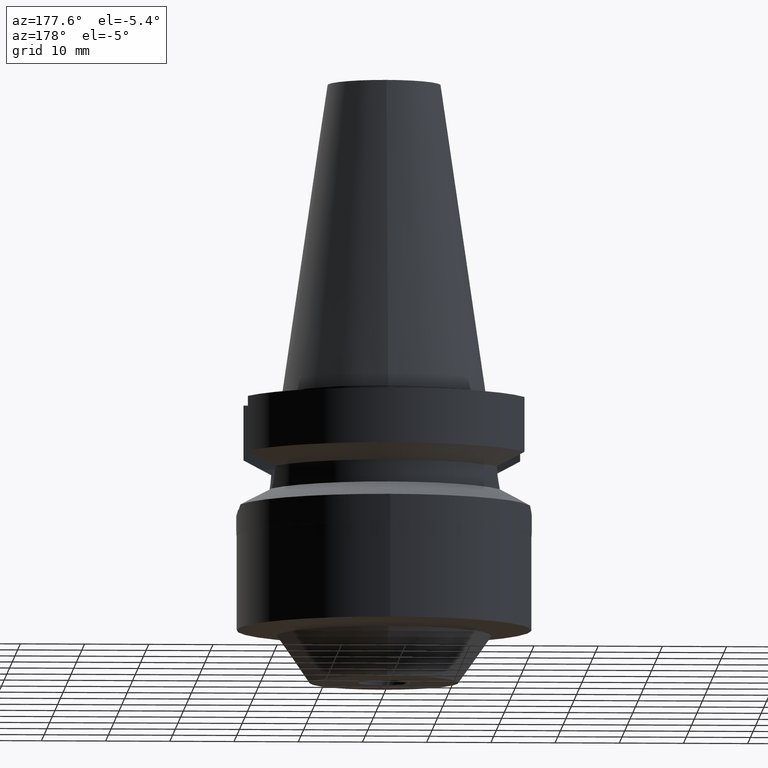
[diagram: clean part render]
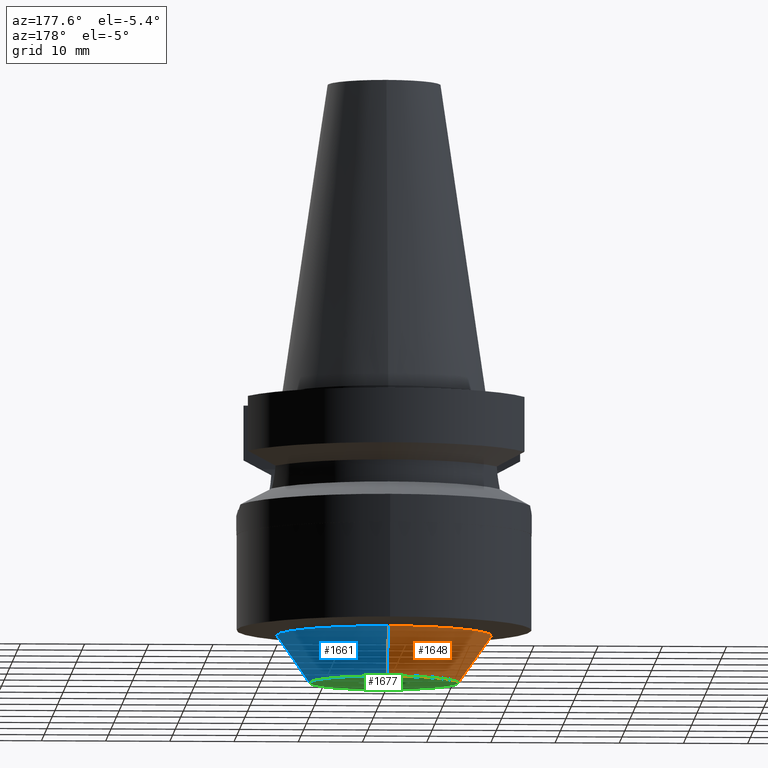
[diagram: same view with three faces highlighted in distinct colors, each labeled with its STEP entity id]
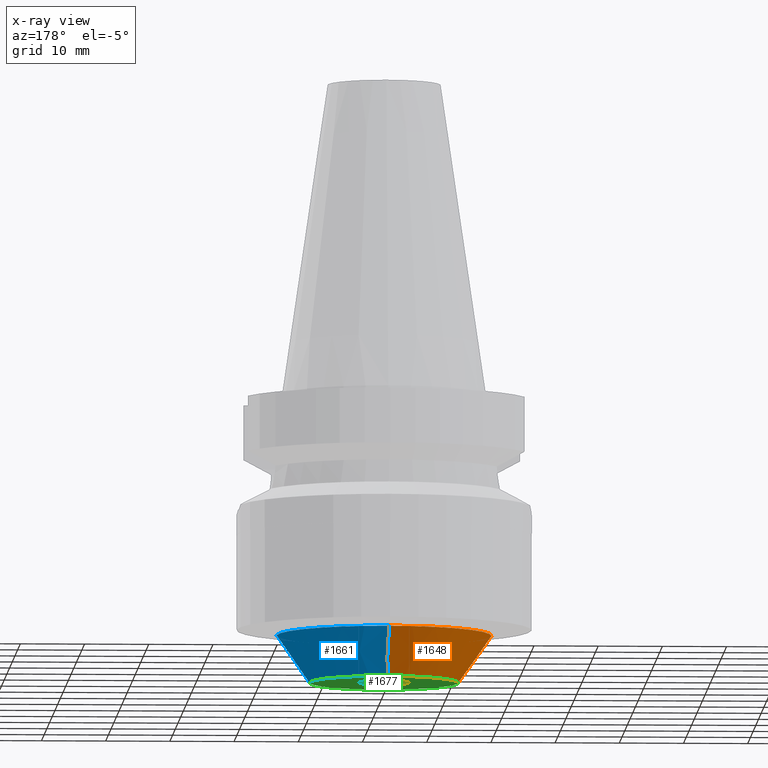
[diagram: x-ray of the same camera — body ghosted, the three highlighted faces saturated]
A machine part, auxiliary view with three faces highlighted in distinct colors.
The next image is the same camera in x-ray (body ghosted, the three faces saturated) — at least one of them is partly hidden behind the body in this view.
Their STEP definitions:

[orange] entity #1648 — the highlighted conical surface has half-angle 34.944 deg.
#695=CARTESIAN_POINT('',(0.E0,0.E0,-3.766545330248E1));
#696=DIRECTION('',(0.E0,0.E0,-1.E0));
#697=DIRECTION('',(0.E0,-1.E0,0.E0));
#698=AXIS2_PLACEMENT_3D('',#695,#696,#697);
#703=DIRECTION('',(0.E0,5.727755361017E-1,-8.197122575901E-1));
#704=VECTOR('',#703,8.947708942509E0);
#705=CARTESIAN_POINT('',(0.E0,-1.6721E1,-3.766545330248E1));
#706=LINE('',#705,#704);
#710=DIRECTION('',(0.E0,-5.727755361017E-1,-8.197122575901E-1));
#711=VECTOR('',#710,8.947708942509E0);
#712=CARTESIAN_POINT('',(0.E0,1.6721E1,-3.766545330248E1));
#713=LINE('',#712,#711);
#733=CARTESIAN_POINT('',(0.E0,0.E0,-4.5E1));
#734=DIRECTION('',(0.E0,0.E0,1.E0));
#735=DIRECTION('',(0.E0,1.E0,0.E0));
#736=AXIS2_PLACEMENT_3D('',#733,#734,#735);
#1053=CARTESIAN_POINT('',(0.E0,-1.159597121358E1,-4.5E1));
#1054=CARTESIAN_POINT('',(0.E0,1.159597121358E1,-4.5E1));
#1055=VERTEX_POINT('',#1053);
#1056=VERTEX_POINT('',#1054);
#1057=CARTESIAN_POINT('',(0.E0,1.6721E1,-3.766545330248E1));
#1058=VERTEX_POINT('',#1057);
#1059=CARTESIAN_POINT('',(0.E0,-1.6721E1,-3.766545330248E1));
#1060=VERTEX_POINT('',#1059);
#1634=CARTESIAN_POINT('',(0.E0,0.E0,-4.133272665124E1));
#1635=DIRECTION('',(0.E0,0.E0,1.E0));
#1636=DIRECTION('',(0.E0,1.E0,0.E0));
#1637=AXIS2_PLACEMENT_3D('',#1634,#1635,#1636);
#1638=CONICAL_SURFACE('',#1637,1.415848560679E1,3.4944E1);
#1640=ORIENTED_EDGE('',*,*,#1639,.F.);
#1641=ORIENTED_EDGE('',*,*,#1629,.F.);
#1643=ORIENTED_EDGE('',*,*,#1642,.T.);
#1645=ORIENTED_EDGE('',*,*,#1644,.F.);
#1646=EDGE_LOOP('',(#1640,#1641,#1643,#1645));
#1647=FACE_OUTER_BOUND('',#1646,.F.);
#699=CIRCLE('',#698,1.6721E1);
#737=CIRCLE('',#736,1.159597121358E1);
#1629=EDGE_CURVE('',#1060,#1058,#699,.T.);
#1639=EDGE_CURVE('',#1058,#1056,#713,.T.);
#1642=EDGE_CURVE('',#1060,#1055,#706,.T.);
#1644=EDGE_CURVE('',#1056,#1055,#737,.T.);
#1648=ADVANCED_FACE('',(#1647),#1638,.T.);

[blue] entity #1661 — the highlighted conical surface has half-angle 34.944 deg.
#703=DIRECTION('',(0.E0,5.727755361017E-1,-8.197122575901E-1));
#704=VECTOR('',#703,8.947708942509E0);
#705=CARTESIAN_POINT('',(0.E0,-1.6721E1,-3.766545330248E1));
#706=LINE('',#705,#704);
#710=DIRECTION('',(0.E0,-5.727755361017E-1,-8.197122575901E-1));
#711=VECTOR('',#710,8.947708942509E0);
#712=CARTESIAN_POINT('',(0.E0,1.6721E1,-3.766545330248E1));
#713=LINE('',#712,#711);
#717=CARTESIAN_POINT('',(0.E0,0.E0,-3.766545330248E1));
#718=DIRECTION('',(0.E0,0.E0,1.E0));
#719=DIRECTION('',(0.E0,-1.E0,0.E0));
#720=AXIS2_PLACEMENT_3D('',#717,#718,#719);
#725=CARTESIAN_POINT('',(0.E0,0.E0,-4.5E1));
#726=DIRECTION('',(0.E0,0.E0,1.E0));
#727=DIRECTION('',(0.E0,-1.E0,0.E0));
#728=AXIS2_PLACEMENT_3D('',#725,#726,#727);
#1053=CARTESIAN_POINT('',(0.E0,-1.159597121358E1,-4.5E1));
#1054=CARTESIAN_POINT('',(0.E0,1.159597121358E1,-4.5E1));
#1055=VERTEX_POINT('',#1053);
#1056=VERTEX_POINT('',#1054);
#1057=CARTESIAN_POINT('',(0.E0,1.6721E1,-3.766545330248E1));
#1058=VERTEX_POINT('',#1057);
#1059=CARTESIAN_POINT('',(0.E0,-1.6721E1,-3.766545330248E1));
#1060=VERTEX_POINT('',#1059);
#1649=CARTESIAN_POINT('',(0.E0,0.E0,-4.133272665124E1));
#1650=DIRECTION('',(0.E0,0.E0,1.E0));
#1651=DIRECTION('',(0.E0,1.E0,0.E0));
#1652=AXIS2_PLACEMENT_3D('',#1649,#1650,#1651);
#1653=CONICAL_SURFACE('',#1652,1.415848560679E1,3.4944E1);
#1654=ORIENTED_EDGE('',*,*,#1639,.T.);
#1656=ORIENTED_EDGE('',*,*,#1655,.F.);
#1657=ORIENTED_EDGE('',*,*,#1642,.F.);
#1658=ORIENTED_EDGE('',*,*,#1613,.T.);
#1659=EDGE_LOOP('',(#1654,#1656,#1657,#1658));
#1660=FACE_OUTER_BOUND('',#1659,.F.);
#721=CIRCLE('',#720,1.6721E1);
#729=CIRCLE('',#728,1.159597121358E1);
#1613=EDGE_CURVE('',#1060,#1058,#721,.T.);
#1639=EDGE_CURVE('',#1058,#1056,#713,.T.);
#1642=EDGE_CURVE('',#1060,#1055,#706,.T.);
#1655=EDGE_CURVE('',#1055,#1056,#729,.T.);
#1661=ADVANCED_FACE('',(#1660),#1653,.T.);

[green] entity #1677 — the highlighted planar face has unit normal (0, 0, -1).
#725=CARTESIAN_POINT('',(0.E0,0.E0,-4.5E1));
#726=DIRECTION('',(0.E0,0.E0,1.E0));
#727=DIRECTION('',(0.E0,-1.E0,0.E0));
#728=AXIS2_PLACEMENT_3D('',#725,#726,#727);
#733=CARTESIAN_POINT('',(0.E0,0.E0,-4.5E1));
#734=DIRECTION('',(0.E0,0.E0,1.E0));
#735=DIRECTION('',(0.E0,1.E0,0.E0));
#736=AXIS2_PLACEMENT_3D('',#733,#734,#735);
#741=CARTESIAN_POINT('',(0.E0,1.874566855455E-14,-4.5E1));
#742=DIRECTION('',(0.E0,0.E0,-1.E0));
#743=DIRECTION('',(0.E0,-1.E0,0.E0));
#744=AXIS2_PLACEMENT_3D('',#741,#742,#743);
#749=CARTESIAN_POINT('',(0.E0,1.874566855455E-14,-4.5E1));
#750=DIRECTION('',(0.E0,0.E0,-1.E0));
#751=DIRECTION('',(0.E0,1.E0,0.E0));
#752=AXIS2_PLACEMENT_3D('',#749,#750,#751);
#1049=CARTESIAN_POINT('',(0.E0,4.E0,-4.5E1));
#1050=VERTEX_POINT('',#1049);
#1051=CARTESIAN_POINT('',(0.E0,-4.E0,-4.5E1));
#1052=VERTEX_POINT('',#1051);
#1053=CARTESIAN_POINT('',(0.E0,-1.159597121358E1,-4.5E1));
#1054=CARTESIAN_POINT('',(0.E0,1.159597121358E1,-4.5E1));
#1055=VERTEX_POINT('',#1053);
#1056=VERTEX_POINT('',#1054);
#1662=CARTESIAN_POINT('',(0.E0,0.E0,-4.5E1));
#1663=DIRECTION('',(0.E0,0.E0,-1.E0));
#1664=DIRECTION('',(0.E0,-1.E0,0.E0));
#1665=AXIS2_PLACEMENT_3D('',#1662,#1663,#1664);
#1666=PLANE('',#1665);
#1667=ORIENTED_EDGE('',*,*,#1655,.T.);
#1668=ORIENTED_EDGE('',*,*,#1644,.T.);
#1669=EDGE_LOOP('',(#1667,#1668));
#1670=FACE_OUTER_BOUND('',#1669,.F.);
#1672=ORIENTED_EDGE('',*,*,#1671,.T.);
#1674=ORIENTED_EDGE('',*,*,#1673,.T.);
#1675=EDGE_LOOP('',(#1672,#1674));
#1676=FACE_BOUND('',#1675,.F.);
#729=CIRCLE('',#728,1.159597121358E1);
#737=CIRCLE('',#736,1.159597121358E1);
#745=CIRCLE('',#744,4.E0);
#753=CIRCLE('',#752,4.E0);
#1644=EDGE_CURVE('',#1056,#1055,#737,.T.);
#1655=EDGE_CURVE('',#1055,#1056,#729,.T.);
#1671=EDGE_CURVE('',#1052,#1050,#745,.T.);
#1673=EDGE_CURVE('',#1050,#1052,#753,.T.);
#1677=ADVANCED_FACE('',(#1670,#1676),#1666,.T.);